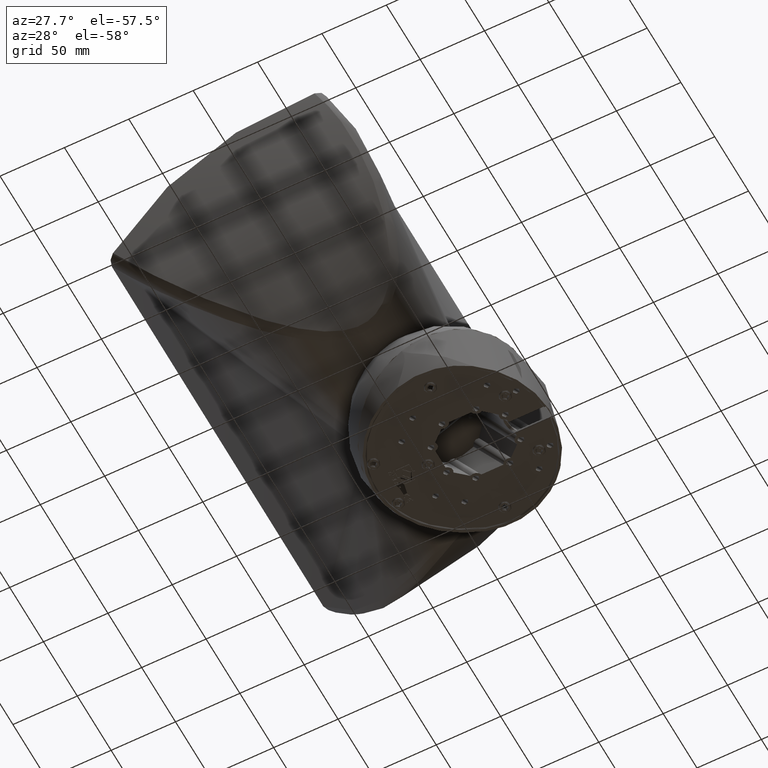
[diagram: clean part render]
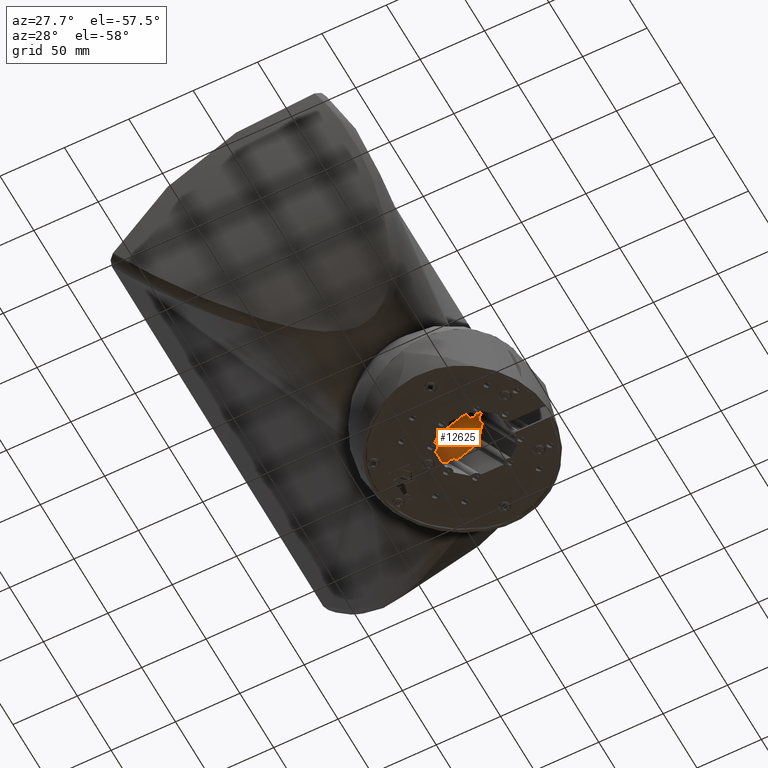
[diagram: same view with one face highlighted and labeled with its STEP entity id]
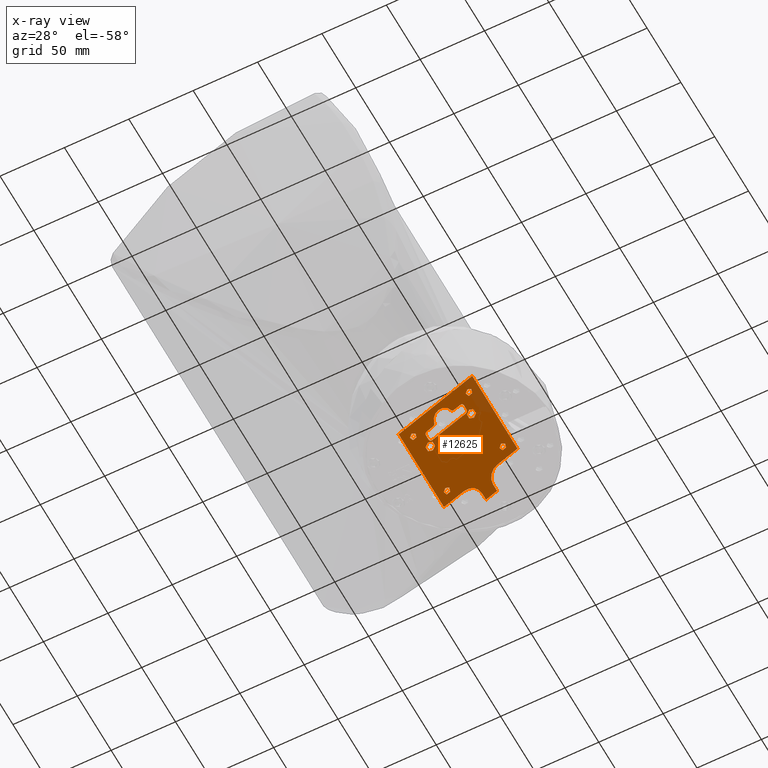
[diagram: x-ray of the same camera — body ghosted, the highlighted face saturated]
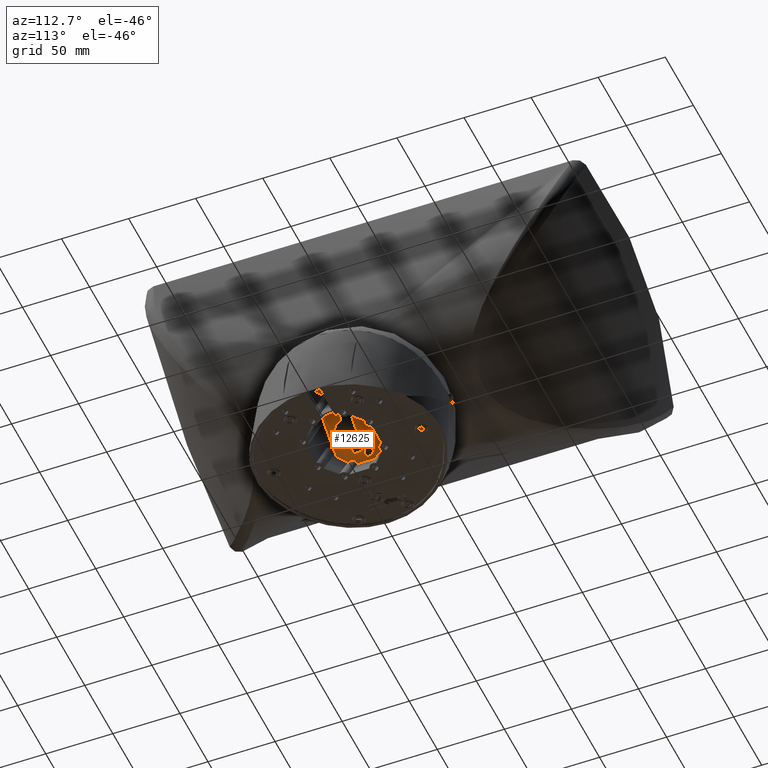
[diagram: same view with one face highlighted and labeled with its STEP entity id]
A machine part, auxiliary view. The second image highlights one B-rep face of the part: STEP entity #12625.
The next image is the same camera in x-ray: the body ghosted, the highlighted face saturated — about 6% of this face is hidden behind the body in this view.
A second angle (auxiliary view) of the same face is appended — the face is thin or edge-on in the first view.
In plain terms, the highlighted planar face has unit normal (0.5, 0, -0.866).
Its self-contained STEP definition (entity closure, byte-faithful):
#910=FACE_BOUND('',#4212,.T.);
#911=FACE_BOUND('',#4213,.T.);
#912=FACE_BOUND('',#4214,.T.);
#913=FACE_BOUND('',#4215,.T.);
#914=FACE_BOUND('',#4216,.T.);
#915=FACE_BOUND('',#4217,.T.);
#916=FACE_BOUND('',#4218,.T.);
#1272=LINE('',#17563,#2358);
#1274=LINE('',#17569,#2360);
#1277=LINE('',#17581,#2363);
#1296=LINE('',#19871,#2382);
#1297=LINE('',#19874,#2383);
#1298=LINE('',#19876,#2384);
#1299=LINE('',#19880,#2385);
#1300=LINE('',#19881,#2386);
#1301=LINE('',#19892,#2387);
#1302=LINE('',#19900,#2388);
#1303=LINE('',#19904,#2389);
#1304=LINE('',#19908,#2390);
#1305=LINE('',#19912,#2391);
#2358=VECTOR('',#14459,1.);
#2360=VECTOR('',#14465,1.);
#2363=VECTOR('',#14478,1.);
#2382=VECTOR('',#14673,1.);
#2383=VECTOR('',#14676,1.);
#2384=VECTOR('',#14677,1.);
#2385=VECTOR('',#14680,1.);
#2386=VECTOR('',#14681,1.);
#2387=VECTOR('',#14690,1.);
#2388=VECTOR('',#14697,1.);
#2389=VECTOR('',#14700,1.);
#2390=VECTOR('',#14703,1.);
#2391=VECTOR('',#14706,1.);
#3488=FACE_OUTER_BOUND('',#4211,.T.);
#4211=EDGE_LOOP('',(#8666,#8667,#8668,#8669,#8670,#8671,#8672,#8673,#8674,
#8675));
#4212=EDGE_LOOP('',(#8676));
#4213=EDGE_LOOP('',(#8677));
#4214=EDGE_LOOP('',(#8678));
#4215=EDGE_LOOP('',(#8679));
#4216=EDGE_LOOP('',(#8680,#8681,#8682,#8683,#8684,#8685,#8686,#8687,#8688,
#8689,#8690,#8691));
#4217=EDGE_LOOP('',(#8692));
#4218=EDGE_LOOP('',(#8693));
#5053=CIRCLE('',#13505,10.);
#5054=CIRCLE('',#13506,10.);
#5055=CIRCLE('',#13507,3.6);
#5056=CIRCLE('',#13508,3.6);
#5057=CIRCLE('',#13509,2.6);
#5058=CIRCLE('',#13510,2.6);
#5059=CIRCLE('',#13511,2.);
#5060=CIRCLE('',#13512,7.5);
#5061=CIRCLE('',#13513,2.);
#5062=CIRCLE('',#13514,2.);
#5063=CIRCLE('',#13515,2.);
#5064=CIRCLE('',#13516,2.);
#5065=CIRCLE('',#13517,2.);
#5066=CIRCLE('',#13518,2.6);
#5067=CIRCLE('',#13519,2.6);
#5246=VERTEX_POINT('',#17560);
#5247=VERTEX_POINT('',#17562);
#5248=VERTEX_POINT('',#17566);
#5249=VERTEX_POINT('',#17568);
#5252=VERTEX_POINT('',#17578);
#5253=VERTEX_POINT('',#17580);
#5348=VERTEX_POINT('',#19873);
#5349=VERTEX_POINT('',#19875);
#5350=VERTEX_POINT('',#19877);
#5351=VERTEX_POINT('',#19879);
#5352=VERTEX_POINT('',#19882);
#5353=VERTEX_POINT('',#19884);
#5354=VERTEX_POINT('',#19886);
#5355=VERTEX_POINT('',#19888);
#5356=VERTEX_POINT('',#19890);
#5357=VERTEX_POINT('',#19891);
#5358=VERTEX_POINT('',#19893);
#5359=VERTEX_POINT('',#19895);
#5360=VERTEX_POINT('',#19897);
#5361=VERTEX_POINT('',#19899);
#5362=VERTEX_POINT('',#19901);
#5363=VERTEX_POINT('',#19903);
#5364=VERTEX_POINT('',#19905);
#5365=VERTEX_POINT('',#19907);
#5366=VERTEX_POINT('',#19909);
#5367=VERTEX_POINT('',#19911);
#5368=VERTEX_POINT('',#19914);
#5369=VERTEX_POINT('',#19916);
#6502=EDGE_CURVE('',#5246,#5247,#1272,.T.);
#6505=EDGE_CURVE('',#5248,#5249,#1274,.T.);
#6511=EDGE_CURVE('',#5252,#5253,#1277,.T.);
#6650=EDGE_CURVE('',#5246,#5249,#1296,.T.);
#6651=EDGE_CURVE('',#5248,#5253,#5053,.T.);
#6652=EDGE_CURVE('',#5252,#5348,#1297,.T.);
#6653=EDGE_CURVE('',#5349,#5348,#1298,.T.);
#6654=EDGE_CURVE('',#5349,#5350,#5054,.T.);
#6655=EDGE_CURVE('',#5351,#5350,#1299,.T.);
#6656=EDGE_CURVE('',#5351,#5247,#1300,.T.);
#6657=EDGE_CURVE('',#5352,#5352,#5055,.T.);
#6658=EDGE_CURVE('',#5353,#5353,#5056,.T.);
#6659=EDGE_CURVE('',#5354,#5354,#5057,.T.);
#6660=EDGE_CURVE('',#5355,#5355,#5058,.T.);
#6661=EDGE_CURVE('',#5356,#5357,#1301,.T.);
#6662=EDGE_CURVE('',#5357,#5358,#5059,.T.);
#6663=EDGE_CURVE('',#5358,#5359,#5060,.T.);
#6664=EDGE_CURVE('',#5359,#5360,#5061,.T.);
#6665=EDGE_CURVE('',#5360,#5361,#1302,.T.);
#6666=EDGE_CURVE('',#5361,#5362,#5062,.T.);
#6667=EDGE_CURVE('',#5362,#5363,#1303,.T.);
#6668=EDGE_CURVE('',#5363,#5364,#5063,.T.);
#6669=EDGE_CURVE('',#5364,#5365,#1304,.T.);
#6670=EDGE_CURVE('',#5365,#5366,#5064,.T.);
#6671=EDGE_CURVE('',#5366,#5367,#1305,.T.);
#6672=EDGE_CURVE('',#5367,#5356,#5065,.T.);
#6673=EDGE_CURVE('',#5368,#5368,#5066,.T.);
#6674=EDGE_CURVE('',#5369,#5369,#5067,.T.);
#8666=ORIENTED_EDGE('',*,*,#6650,.T.);
#8667=ORIENTED_EDGE('',*,*,#6505,.F.);
#8668=ORIENTED_EDGE('',*,*,#6651,.T.);
#8669=ORIENTED_EDGE('',*,*,#6511,.F.);
#8670=ORIENTED_EDGE('',*,*,#6652,.T.);
#8671=ORIENTED_EDGE('',*,*,#6653,.F.);
#8672=ORIENTED_EDGE('',*,*,#6654,.T.);
#8673=ORIENTED_EDGE('',*,*,#6655,.F.);
#8674=ORIENTED_EDGE('',*,*,#6656,.T.);
#8675=ORIENTED_EDGE('',*,*,#6502,.F.);
#8676=ORIENTED_EDGE('',*,*,#6657,.T.);
#8677=ORIENTED_EDGE('',*,*,#6658,.T.);
#8678=ORIENTED_EDGE('',*,*,#6659,.T.);
#8679=ORIENTED_EDGE('',*,*,#6660,.T.);
#8680=ORIENTED_EDGE('',*,*,#6661,.T.);
#8681=ORIENTED_EDGE('',*,*,#6662,.T.);
#8682=ORIENTED_EDGE('',*,*,#6663,.T.);
#8683=ORIENTED_EDGE('',*,*,#6664,.T.);
#8684=ORIENTED_EDGE('',*,*,#6665,.T.);
#8685=ORIENTED_EDGE('',*,*,#6666,.T.);
#8686=ORIENTED_EDGE('',*,*,#6667,.T.);
#8687=ORIENTED_EDGE('',*,*,#6668,.T.);
#8688=ORIENTED_EDGE('',*,*,#6669,.T.);
#8689=ORIENTED_EDGE('',*,*,#6670,.T.);
#8690=ORIENTED_EDGE('',*,*,#6671,.T.);
#8691=ORIENTED_EDGE('',*,*,#6672,.T.);
#8692=ORIENTED_EDGE('',*,*,#6673,.F.);
#8693=ORIENTED_EDGE('',*,*,#6674,.F.);
#12180=PLANE('',#13504);
#12625=ADVANCED_FACE('',(#3488,#910,#911,#912,#913,#914,#915,#916),#12180,
 .T.);
#13504=AXIS2_PLACEMENT_3D('',#19870,#14671,#14672);
#13505=AXIS2_PLACEMENT_3D('',#19872,#14674,#14675);
#13506=AXIS2_PLACEMENT_3D('',#19878,#14678,#14679);
#13507=AXIS2_PLACEMENT_3D('',#19883,#14682,#14683);
#13508=AXIS2_PLACEMENT_3D('',#19885,#14684,#14685);
#13509=AXIS2_PLACEMENT_3D('',#19887,#14686,#14687);
#13510=AXIS2_PLACEMENT_3D('',#19889,#14688,#14689);
#13511=AXIS2_PLACEMENT_3D('',#19894,#14691,#14692);
#13512=AXIS2_PLACEMENT_3D('',#19896,#14693,#14694);
#13513=AXIS2_PLACEMENT_3D('',#19898,#14695,#14696);
#13514=AXIS2_PLACEMENT_3D('',#19902,#14698,#14699);
#13515=AXIS2_PLACEMENT_3D('',#19906,#14701,#14702);
#13516=AXIS2_PLACEMENT_3D('',#19910,#14704,#14705);
#13517=AXIS2_PLACEMENT_3D('',#19913,#14707,#14708);
#13518=AXIS2_PLACEMENT_3D('',#19915,#14709,#14710);
#13519=AXIS2_PLACEMENT_3D('',#19917,#14711,#14712);
#14459=DIRECTION('',(1.,8.20630510314443E-15,-4.92599055534495E-18));
#14465=DIRECTION('',(-1.,-8.60281332622493E-15,4.92599055534495E-18));
#14478=DIRECTION('',(8.91144657954903E-15,-1.,1.51788304147968E-18));
#14671=DIRECTION('center_axis',(-4.92599055534494E-18,-1.51788304147972E-18,
-1.));
#14672=DIRECTION('ref_axis',(5.67148270466997E-15,1.,-1.51788304147975E-18));
#14673=DIRECTION('',(1.97144822721014E-14,1.,-1.51788304147982E-18));
#14674=DIRECTION('center_axis',(4.92599055534494E-18,1.51788304147972E-18,
1.));
#14675=DIRECTION('ref_axis',(5.67148270466997E-15,1.,-1.51788304147975E-18));
#14676=DIRECTION('',(1.,6.81852632236303E-15,-4.92599055534495E-18));
#14677=DIRECTION('',(-7.98377932228313E-15,1.,-1.51788304147968E-18));
#14678=DIRECTION('center_axis',(4.92599055534494E-18,1.51788304147972E-18,
1.));
#14679=DIRECTION('ref_axis',(5.67148270466997E-15,1.,-1.51788304147975E-18));
#14680=DIRECTION('',(-1.,-8.60281332622493E-15,4.92599055534495E-18));
#14681=DIRECTION('',(8.37151686276143E-15,-1.,1.51788304147968E-18));
#14682=DIRECTION('center_axis',(4.92599055534494E-18,1.51788304147972E-18,
1.));
#14683=DIRECTION('ref_axis',(5.67148270466997E-15,1.,-1.51788304147975E-18));
#14684=DIRECTION('center_axis',(4.92599055534494E-18,1.51788304147972E-18,
1.));
#14685=DIRECTION('ref_axis',(5.67148270466997E-15,1.,-1.51788304147975E-18));
#14686=DIRECTION('center_axis',(4.92599055534494E-18,1.51788304147972E-18,
1.));
#14687=DIRECTION('ref_axis',(5.67148270466997E-15,1.,-1.51788304147975E-18));
#14688=DIRECTION('center_axis',(4.92599055534494E-18,1.51788304147972E-18,
1.));
#14689=DIRECTION('ref_axis',(5.67148270466997E-15,1.,-1.51788304147975E-18));
#14690=DIRECTION('',(1.,8.57151004545543E-15,-4.92599055534495E-18));
#14691=DIRECTION('center_axis',(-4.92599055534494E-18,-1.51788304147972E-18,
-1.));
#14692=DIRECTION('ref_axis',(5.67148270466997E-15,1.,-1.51788304147975E-18));
#14693=DIRECTION('center_axis',(4.92599055534494E-18,1.51788304147972E-18,
1.));
#14694=DIRECTION('ref_axis',(5.67148270466997E-15,1.,-1.51788304147975E-18));
#14695=DIRECTION('center_axis',(-4.92599055534494E-18,-1.51788304147972E-18,
-1.));
#14696=DIRECTION('ref_axis',(5.67148270466997E-15,1.,-1.51788304147975E-18));
#14697=DIRECTION('',(1.,7.29329274736723E-15,-4.92599055534495E-18));
#14698=DIRECTION('center_axis',(4.92599055534494E-18,1.51788304147972E-18,
1.));
#14699=DIRECTION('ref_axis',(5.67148270466997E-15,1.,-1.51788304147975E-18));
#14700=DIRECTION('',(-6.90526249616183E-15,1.,-1.51788304147969E-18));
#14701=DIRECTION('center_axis',(4.92599055534494E-18,1.51788304147972E-18,
1.));
#14702=DIRECTION('ref_axis',(5.67148270466997E-15,1.,-1.51788304147975E-18));
#14703=DIRECTION('',(-1.,-8.20957046498163E-15,4.92599055534495E-18));
#14704=DIRECTION('center_axis',(4.92599055534494E-18,1.51788304147972E-18,
1.));
#14705=DIRECTION('ref_axis',(5.67148270466997E-15,1.,-1.51788304147975E-18));
#14706=DIRECTION('',(6.47158162716773E-15,-1.,1.51788304147969E-18));
#14707=DIRECTION('center_axis',(4.92599055534494E-18,1.51788304147972E-18,
1.));
#14708=DIRECTION('ref_axis',(5.67148270466997E-15,1.,-1.51788304147975E-18));
#14709=DIRECTION('center_axis',(-4.92599055534494E-18,-1.51788304147972E-18,
-1.));
#14710=DIRECTION('ref_axis',(5.67148270466997E-15,1.,-1.51788304147975E-18));
#14711=DIRECTION('center_axis',(-4.92599055534494E-18,-1.51788304147972E-18,
-1.));
#14712=DIRECTION('ref_axis',(5.67148270466997E-15,1.,-1.51788304147975E-18));
#17560=CARTESIAN_POINT('',(-32.9999999999982,-20.0000000000012,-215.));
#17562=CARTESIAN_POINT('',(33.000000000003,-20.0000000000007,-215.));
#17563=CARTESIAN_POINT('',(33.000000000003,-20.0000000000007,-215.));
#17566=CARTESIAN_POINT('',(-14.9999999999971,46.9999999999985,-215.));
#17568=CARTESIAN_POINT('',(-32.9999999999969,46.9999999999983,-215.));
#17569=CARTESIAN_POINT('',(35.0000000000025,46.9999999999989,-215.));
#17578=CARTESIAN_POINT('',(-4.99999999999718,62.9999999999989,-215.));
#17580=CARTESIAN_POINT('',(-4.99999999999713,56.9999999999985,-215.));
#17581=CARTESIAN_POINT('',(-4.9999999999972,64.9999999999989,-215.));
#19870=CARTESIAN_POINT('Origin',(35.0000000000025,46.9999999999989,-215.));
#19871=CARTESIAN_POINT('',(-32.9999999999969,47.0000000000002,-215.));
#19872=CARTESIAN_POINT('Origin',(-14.9999999999971,56.9999999999985,-215.));
#19873=CARTESIAN_POINT('',(5.00000000000283,62.9999999999989,-215.));
#19874=CARTESIAN_POINT('',(35.0000000000024,62.9999999999991,-215.));
#19875=CARTESIAN_POINT('',(5.00000000000287,56.9999999999986,-215.));
#19876=CARTESIAN_POINT('',(5.00000000000299,41.6251926217363,-215.));
#19877=CARTESIAN_POINT('',(15.0000000000029,46.9999999999987,-215.));
#19878=CARTESIAN_POINT('Origin',(15.0000000000029,56.9999999999987,-215.));
#19879=CARTESIAN_POINT('',(33.0000000000025,46.9999999999988,-215.));
#19880=CARTESIAN_POINT('',(35.0000000000025,46.9999999999989,-215.));
#19881=CARTESIAN_POINT('',(33.0000000000025,46.9999999999988,-215.));
#19882=CARTESIAN_POINT('',(-18.4999999999974,-0.600000000001125,-215.));
#19883=CARTESIAN_POINT('Origin',(-18.4999999999974,2.99999999999888,-215.));
#19884=CARTESIAN_POINT('',(18.5000000000026,-0.600000000001335,-215.));
#19885=CARTESIAN_POINT('Origin',(18.5000000000026,2.99999999999867,-215.));
#19886=CARTESIAN_POINT('',(-24.9999999999972,35.899999999999,-215.));
#19887=CARTESIAN_POINT('Origin',(-24.9999999999972,38.499999999999,-215.));
#19888=CARTESIAN_POINT('',(25.0000000000028,35.8999999999987,-215.));
#19889=CARTESIAN_POINT('Origin',(25.0000000000028,38.4999999999987,-215.));
#19890=CARTESIAN_POINT('',(-14.9999999999975,-8.0000000000016,-215.));
#19891=CARTESIAN_POINT('',(-9.28708781050085,-8.00000000000156,-215.));
#19892=CARTESIAN_POINT('',(35.000000000003,-8.00000000000118,-215.));
#19893=CARTESIAN_POINT('',(-7.33191142934223,-9.5789473684226,-215.));
#19894=CARTESIAN_POINT('Origin',(-9.28708781050083,-10.0000000000016,-215.));
#19895=CARTESIAN_POINT('',(7.33191142934728,-9.57894736842248,-215.));
#19896=CARTESIAN_POINT('Origin',(2.51414677980616E-12,-8.00000000000149,
-215.));
#19897=CARTESIAN_POINT('',(9.28708781050586,-8.00000000000141,-215.));
#19898=CARTESIAN_POINT('Origin',(9.28708781050588,-10.0000000000014,-215.));
#19899=CARTESIAN_POINT('',(15.0000000000025,-8.00000000000137,-215.));
#19900=CARTESIAN_POINT('',(35.0000000000029,-8.00000000000123,-215.));
#19901=CARTESIAN_POINT('',(17.0000000000025,-6.00000000000136,-215.));
#19902=CARTESIAN_POINT('Origin',(15.0000000000025,-6.00000000000137,-215.));
#19903=CARTESIAN_POINT('',(17.0000000000025,-2.00000000000135,-215.));
#19904=CARTESIAN_POINT('',(17.0000000000021,46.9999999999987,-215.));
#19905=CARTESIAN_POINT('',(15.0000000000025,-1.36111014795499E-12,-215.));
#19906=CARTESIAN_POINT('Origin',(15.0000000000025,-2.00000000000136,-215.));
#19907=CARTESIAN_POINT('',(-14.9999999999975,-1.60739726190444E-12,-215.));
#19908=CARTESIAN_POINT('',(35.0000000000029,-1.19691873865535E-12,-215.));
#19909=CARTESIAN_POINT('',(-16.9999999999975,-2.00000000000162,-215.));
#19910=CARTESIAN_POINT('Origin',(-14.9999999999976,-2.0000000000016,-215.));
#19911=CARTESIAN_POINT('',(-16.9999999999975,-6.00000000000161,-215.));
#19912=CARTESIAN_POINT('',(-16.9999999999979,46.9999999999985,-215.));
#19913=CARTESIAN_POINT('Origin',(-14.9999999999975,-6.0000000000016,-215.));
#19914=CARTESIAN_POINT('',(25.0000000000025,-14.1000000000008,-215.));
#19915=CARTESIAN_POINT('Origin',(25.0000000000025,-11.5000000000008,-215.));
#19916=CARTESIAN_POINT('',(-24.9999999999975,-14.1000000000005,-215.));
#19917=CARTESIAN_POINT('Origin',(-24.9999999999975,-11.5000000000005,-215.));